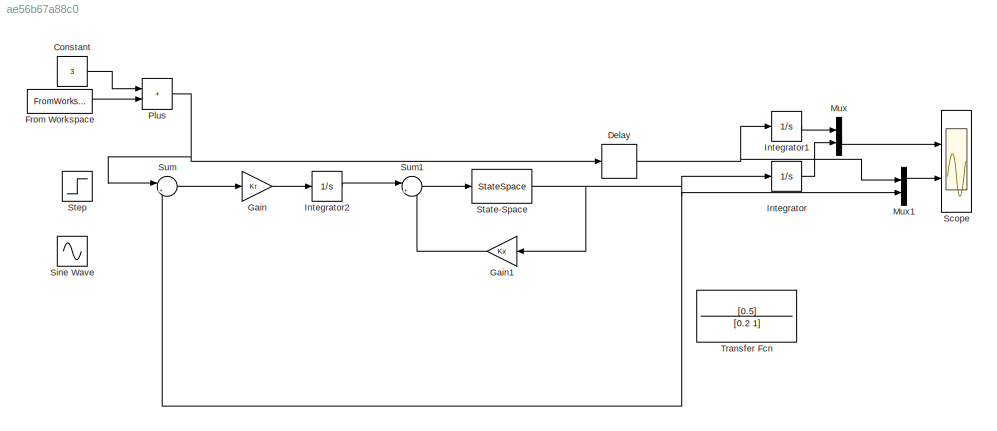
MODEL slx_ae56b67a88c0
KIND model
CONFIG AbsTol = auto
CONFIG EnableMultiTasking = off
CONFIG FixedStep = auto
CONFIG MaxStep = auto
CONFIG MinStep = auto
CONFIG RelTol = 1e-3
CONFIG SampleTimeConstraint = Unconstrained
CONFIG SolverName = VariableStepAuto
CONFIG StartTime = 0.0
CONFIG StopTime = 10
BLOCK [Constant] Constant
  Value = 3
BLOCK [Delay] Delay
  Commented = through
  DelayLength = 70
  InputPortMap = u0
  Ports = [1, 1]
  SampleTime = 0.01
BLOCK [FromWorkspace] From Workspace
  VariableName = simInput
BLOCK [Gain] Gain
  Gain = Kr
BLOCK [Gain] Gain1
  Gain = Kx
  NameLocation = top
BLOCK [Integrator] Integrator
  Ports = [1, 1]
BLOCK [Integrator] Integrator1
  Ports = [1, 1]
BLOCK [Integrator] Integrator2
  Ports = [1, 1]
BLOCK [Mux] Mux
  DisplayOption = bar
  Inputs = 2
  Ports = [2, 1]
BLOCK [Mux] Mux1
  DisplayOption = bar
  Inputs = 2
  Ports = [2, 1]
BLOCK [Sum] Plus
  IconShape = rectangular
  Ports = [2, 1]
BLOCK [Scope] Scope
  Floating = off
  NumInputPorts = 2
  Ports = [2]
  ScopeSpecificationString = Simulink.scopes.TimeScopeBlockCfg('CurrentConfiguration', extmgr.ConfigurationSet(extmgr.Configuration('Core','General UI',true),extmgr.Configuration('Core','Source UI',true),extmgr.Configuration('Sources','WiredSimulink',true),extmgr.Configuration('Visuals','Time Domain',true,'SerializedDisplays',{struct('MinYLimReal','-0.28749','MaxYLimReal','2.58737','YLabelReal','','MinYLimMag','0.00000','MaxY...<+2387ch>
BLOCK [Sin] Sine Wave
  Frequency = 0.1
  Ports = [0, 1]
  SampleTime = 0
BLOCK [StateSpace] State-Space
  A = A
  B = B
  C = C
  D = D
  InitialCondition = 0
  Ports = [1, 1]
BLOCK [Step] Step
  Before = 10
  SampleTime = 0
  Time = 5
BLOCK [Sum] Sum
  Inputs = |+-
  Ports = [2, 1]
BLOCK [Sum] Sum1
  Inputs = |+-
  Ports = [2, 1]
BLOCK [TransferFcn] Transfer Fcn
  Commented = on
  Denominator = [0.2 1]
  Numerator = [0.5]
LINE Constant:1 -> Plus:1
NET Delay:1 -> Integrator1:1, Mux1:1
LINE From Workspace:1 -> Plus:2
LINE Gain1:1 -> Sum1:2
LINE Gain:1 -> Integrator2:1
LINE Integrator1:1 -> Mux:1
LINE Integrator2:1 -> Sum1:1
LINE Integrator:1 -> Mux:2
LINE Mux1:1 -> Scope:2
LINE Mux:1 -> Scope:1
NET Plus:1 -> Delay:1, Sum:1
NET State-Space:1 -> Gain1:1, Integrator:1, Mux1:2, Sum:2
LINE Sum1:1 -> State-Space:1
LINE Sum:1 -> Gain:1
note: NET lines group one-source signal fan-out (src -> all destinations, sorted); 1:1 wires keep LINE
